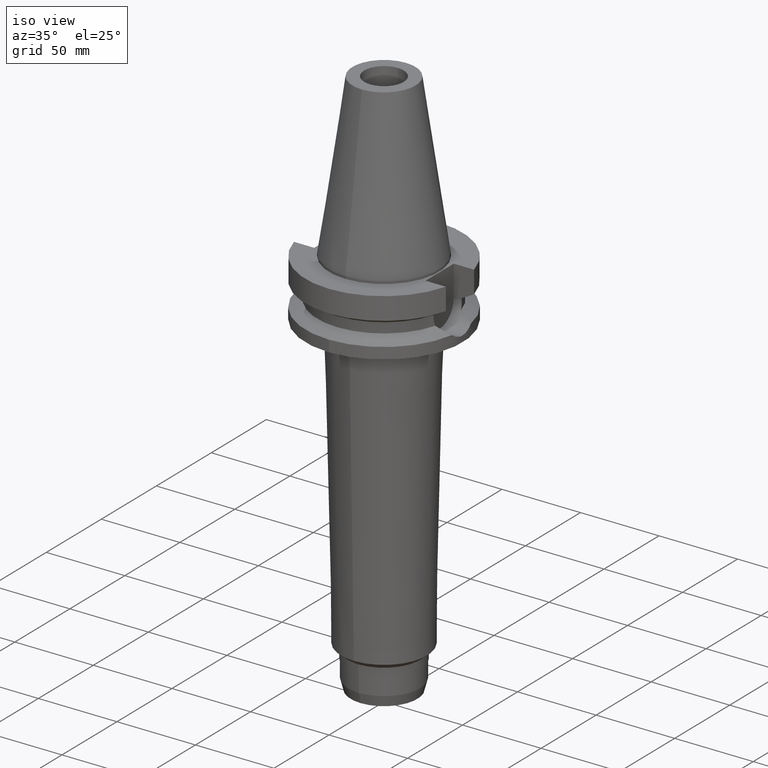
[diagram: clean part render]
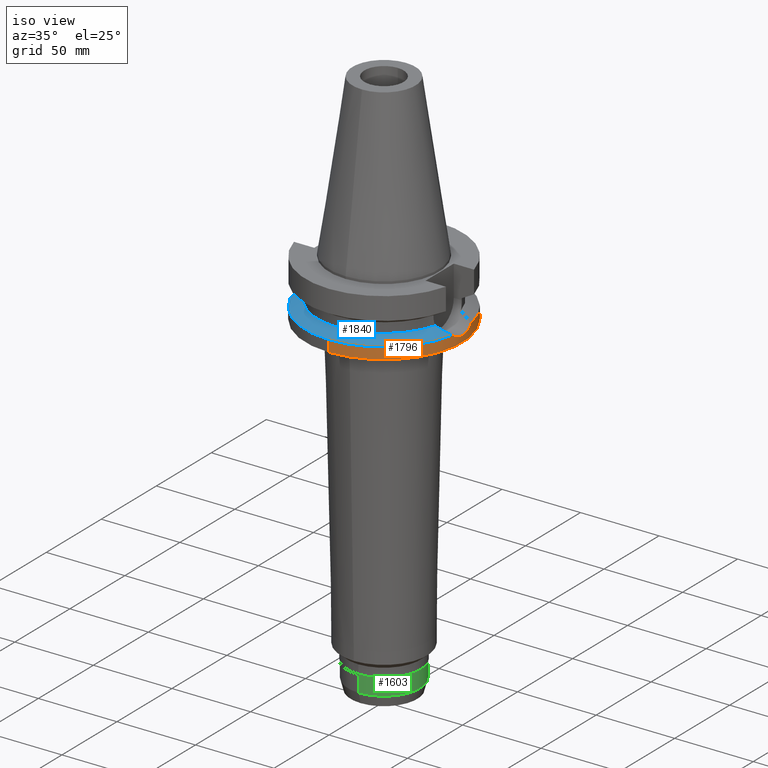
[diagram: same view with three faces highlighted in distinct colors, each labeled with its STEP entity id]
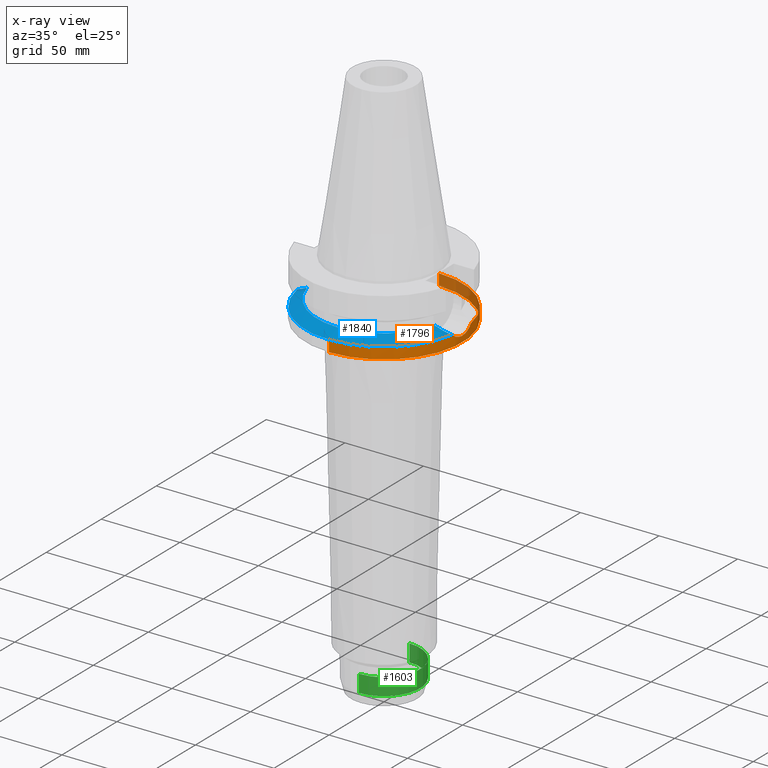
[diagram: x-ray of the same camera — body ghosted, the three highlighted faces saturated]
A machine part, iso view with three faces highlighted in distinct colors.
The next image is the same camera in x-ray (body ghosted, the three faces saturated) — at least one of them is partly hidden behind the body in this view.
Their STEP definitions:

[orange] entity #1796 — the highlighted cylindrical surface (partial cylindrical patch) has radius 50 mm, axis along (0, 0, -1).
#488=CARTESIAN_POINT('',(0.E0,2.688222188808E-14,-3.8E1));
#489=DIRECTION('',(0.E0,0.E0,1.E0));
#490=DIRECTION('',(0.E0,-1.E0,0.E0));
#491=AXIS2_PLACEMENT_3D('',#488,#489,#490);
#520=CARTESIAN_POINT('',(4.926250064874E1,-8.556052234130E0,-3.073730776427E1));
#521=CARTESIAN_POINT('',(4.940163688830E1,-7.754958586736E0,-3.145223204333E1));
#522=CARTESIAN_POINT('',(4.966038067048E1,-6.040424970940E0,-3.263510918962E1));
#523=CARTESIAN_POINT('',(4.993559859786E1,-3.083334717630E0,-3.375320105744E1));
#524=CARTESIAN_POINT('',(5.000000016410E1,-1.047716999210E0,-3.400000074622E1));
#525=CARTESIAN_POINT('',(5.000000016410E1,1.803353644084E-14,
-3.400000074622E1));
#530=CARTESIAN_POINT('',(5.000000016410E1,1.803353644084E-14,
-3.400000074622E1));
#531=CARTESIAN_POINT('',(5.000000016410E1,1.047853075079E0,-3.400000074622E1));
#532=CARTESIAN_POINT('',(4.993558133249E1,3.083649438432E0,-3.375313491797E1));
#533=CARTESIAN_POINT('',(4.966034394328E1,6.040700032429E0,-3.263495205735E1));
#534=CARTESIAN_POINT('',(4.940161955145E1,7.755058405725E0,-3.145214296134E1));
#535=CARTESIAN_POINT('',(4.926250064874E1,8.556052234130E0,-3.073730776427E1));
#540=DIRECTION('',(0.E0,2.152361642122E-14,-1.E0));
#541=VECTOR('',#540,7.262692235730E0);
#542=CARTESIAN_POINT('',(0.E0,5.E1,-3.073730776427E1));
#543=LINE('',#542,#541);
#597=CARTESIAN_POINT('',(0.E0,0.E0,-3.073730776427E1));
#598=DIRECTION('',(0.E0,0.E0,-1.E0));
#599=DIRECTION('',(9.852500129747E-1,-1.711210446826E-1,0.E0));
#600=AXIS2_PLACEMENT_3D('',#597,#598,#599);
#640=DIRECTION('',(0.E0,-2.250196262218E-14,-1.E0));
#641=VECTOR('',#640,7.262692235730E0);
#642=CARTESIAN_POINT('',(0.E0,-5.E1,-3.073730776427E1));
#643=LINE('',#642,#641);
#665=CARTESIAN_POINT('',(0.E0,0.E0,-3.073730776427E1));
#666=DIRECTION('',(0.E0,0.E0,-1.E0));
#667=DIRECTION('',(0.E0,1.E0,0.E0));
#668=AXIS2_PLACEMENT_3D('',#665,#666,#667);
#1205=CARTESIAN_POINT('',(0.E0,-5.E1,-3.8E1));
#1206=CARTESIAN_POINT('',(0.E0,5.E1,-3.8E1));
#1207=VERTEX_POINT('',#1205);
#1208=VERTEX_POINT('',#1206);
#1209=VERTEX_POINT('',#530);
#1210=VERTEX_POINT('',#535);
#1211=VERTEX_POINT('',#520);
#1212=CARTESIAN_POINT('',(0.E0,5.E1,-3.073730776427E1));
#1213=VERTEX_POINT('',#1212);
#1214=CARTESIAN_POINT('',(0.E0,-5.E1,-3.073730776427E1));
#1215=VERTEX_POINT('',#1214);
#1776=CARTESIAN_POINT('',(0.E0,2.688222188808E-14,1.1951E2));
#1777=DIRECTION('',(0.E0,0.E0,-1.E0));
#1778=DIRECTION('',(0.E0,-1.E0,0.E0));
#1779=AXIS2_PLACEMENT_3D('',#1776,#1777,#1778);
#1780=CYLINDRICAL_SURFACE('',#1779,5.E1);
#1782=ORIENTED_EDGE('',*,*,#1781,.T.);
#1784=ORIENTED_EDGE('',*,*,#1783,.T.);
#1786=ORIENTED_EDGE('',*,*,#1785,.F.);
#1788=ORIENTED_EDGE('',*,*,#1787,.T.);
#1789=ORIENTED_EDGE('',*,*,#1765,.F.);
#1791=ORIENTED_EDGE('',*,*,#1790,.F.);
#1793=ORIENTED_EDGE('',*,*,#1792,.F.);
#1794=EDGE_LOOP('',(#1782,#1784,#1786,#1788,#1789,#1791,#1793));
#1795=FACE_OUTER_BOUND('',#1794,.F.);
#492=CIRCLE('',#491,5.E1);
#526=B_SPLINE_CURVE_WITH_KNOTS('',3,(#520,#521,#522,#523,#524,#525),
.UNSPECIFIED.,.F.,.F.,(4,1,1,4),(0.E0,3.333333333333E-1,6.666666666667E-1,1.E0),
.UNSPECIFIED.);
#536=B_SPLINE_CURVE_WITH_KNOTS('',3,(#530,#531,#532,#533,#534,#535),
.UNSPECIFIED.,.F.,.F.,(4,1,1,4),(0.E0,3.333333333333E-1,6.666666666667E-1,1.E0),
.UNSPECIFIED.);
#601=CIRCLE('',#600,5.E1);
#669=CIRCLE('',#668,5.E1);
#1765=EDGE_CURVE('',#1207,#1208,#492,.T.);
#1781=EDGE_CURVE('',#1211,#1209,#526,.T.);
#1783=EDGE_CURVE('',#1209,#1210,#536,.T.);
#1785=EDGE_CURVE('',#1213,#1210,#669,.T.);
#1787=EDGE_CURVE('',#1213,#1208,#543,.T.);
#1790=EDGE_CURVE('',#1215,#1207,#643,.T.);
#1792=EDGE_CURVE('',#1211,#1215,#601,.T.);
#1796=ADVANCED_FACE('',(#1795),#1780,.T.);

[blue] entity #1840 — the highlighted conical surface has half-angle 60 deg.
#520=CARTESIAN_POINT('',(4.926250064874E1,-8.556052234130E0,-3.073730776427E1));
#561=CARTESIAN_POINT('',(-4.926250064874E1,-8.556052234130E0,
-3.073730776427E1));
#562=CARTESIAN_POINT('',(-4.850516715124E1,-8.990660140457E0,
-3.034944831099E1));
#563=CARTESIAN_POINT('',(-4.686825604705E1,-9.811258881911E0,
-2.951024882167E1));
#564=CARTESIAN_POINT('',(-4.409105561535E1,-1.087032054238E1,
-2.808218430025E1));
#565=CARTESIAN_POINT('',(-4.197104311257E1,-1.146516460610E1,
-2.698755488822E1));
#566=CARTESIAN_POINT('',(-4.085052569294E1,-1.172538061688E1,
-2.640718074535E1));
#571=CARTESIAN_POINT('',(0.E0,0.E0,-2.640718074535E1));
#572=DIRECTION('',(0.E0,0.E0,1.E0));
#573=DIRECTION('',(-9.611888398338E-1,-2.758913086325E-1,0.E0));
#574=AXIS2_PLACEMENT_3D('',#571,#572,#573);
#579=CARTESIAN_POINT('',(0.E0,0.E0,-2.640718074535E1));
#580=DIRECTION('',(0.E0,0.E0,1.E0));
#581=DIRECTION('',(0.E0,-1.E0,0.E0));
#582=AXIS2_PLACEMENT_3D('',#579,#580,#581);
#587=CARTESIAN_POINT('',(4.085052569294E1,-1.172538061688E1,-2.640718074535E1));
#588=CARTESIAN_POINT('',(4.199242978068E1,-1.146019801356E1,-2.699863215391E1));
#589=CARTESIAN_POINT('',(4.414030951563E1,-1.085501308367E1,-2.810757365825E1));
#590=CARTESIAN_POINT('',(4.691884757540E1,-9.788493802271E0,-2.953621028612E1));
#591=CARTESIAN_POINT('',(4.852593326370E1,-8.978743175622E0,-3.036008343151E1));
#592=CARTESIAN_POINT('',(4.926250064874E1,-8.556052234130E0,-3.073730776427E1));
#597=CARTESIAN_POINT('',(0.E0,0.E0,-3.073730776427E1));
#598=DIRECTION('',(0.E0,0.E0,-1.E0));
#599=DIRECTION('',(9.852500129747E-1,-1.711210446826E-1,0.E0));
#600=AXIS2_PLACEMENT_3D('',#597,#598,#599);
#605=CARTESIAN_POINT('',(0.E0,0.E0,-3.073730776427E1));
#606=DIRECTION('',(0.E0,0.E0,-1.E0));
#607=DIRECTION('',(0.E0,-1.E0,0.E0));
#608=AXIS2_PLACEMENT_3D('',#605,#606,#607);
#1211=VERTEX_POINT('',#520);
#1214=CARTESIAN_POINT('',(0.E0,-5.E1,-3.073730776427E1));
#1215=VERTEX_POINT('',#1214);
#1216=VERTEX_POINT('',#587);
#1227=VERTEX_POINT('',#561);
#1228=VERTEX_POINT('',#566);
#1229=CARTESIAN_POINT('',(0.E0,-4.25E1,-2.640718074535E1));
#1230=VERTEX_POINT('',#1229);
#1823=CARTESIAN_POINT('',(0.E0,0.E0,-2.857224425481E1));
#1824=DIRECTION('',(0.E0,0.E0,-1.E0));
#1825=DIRECTION('',(0.E0,-1.E0,0.E0));
#1826=AXIS2_PLACEMENT_3D('',#1823,#1824,#1825);
#1827=CONICAL_SURFACE('',#1826,4.625E1,6.E1);
#1829=ORIENTED_EDGE('',*,*,#1828,.T.);
#1831=ORIENTED_EDGE('',*,*,#1830,.T.);
#1833=ORIENTED_EDGE('',*,*,#1832,.T.);
#1834=ORIENTED_EDGE('',*,*,#1804,.T.);
#1835=ORIENTED_EDGE('',*,*,#1792,.T.);
#1837=ORIENTED_EDGE('',*,*,#1836,.T.);
#1838=EDGE_LOOP('',(#1829,#1831,#1833,#1834,#1835,#1837));
#1839=FACE_OUTER_BOUND('',#1838,.F.);
#567=B_SPLINE_CURVE_WITH_KNOTS('',3,(#561,#562,#563,#564,#565,#566),
.UNSPECIFIED.,.F.,.F.,(4,1,1,4),(0.E0,3.333333333333E-1,6.666666666667E-1,1.E0),
.UNSPECIFIED.);
#575=CIRCLE('',#574,4.25E1);
#583=CIRCLE('',#582,4.25E1);
#593=B_SPLINE_CURVE_WITH_KNOTS('',3,(#587,#588,#589,#590,#591,#592),
.UNSPECIFIED.,.F.,.F.,(4,1,1,4),(0.E0,3.333333333333E-1,6.666666666667E-1,1.E0),
.UNSPECIFIED.);
#601=CIRCLE('',#600,5.E1);
#609=CIRCLE('',#608,5.E1);
#1792=EDGE_CURVE('',#1211,#1215,#601,.T.);
#1804=EDGE_CURVE('',#1216,#1211,#593,.T.);
#1828=EDGE_CURVE('',#1227,#1228,#567,.T.);
#1830=EDGE_CURVE('',#1228,#1230,#575,.T.);
#1832=EDGE_CURVE('',#1230,#1216,#583,.T.);
#1836=EDGE_CURVE('',#1215,#1227,#609,.T.);
#1840=ADVANCED_FACE('',(#1839),#1827,.T.);

[green] entity #1603 — the highlighted cylindrical surface (partial cylindrical patch) has radius 23 mm, axis along (0, 0, -1).
#285=CARTESIAN_POINT('',(0.E0,-1.806354028742E-14,-2.442E2));
#286=DIRECTION('',(0.E0,0.E0,1.E0));
#287=DIRECTION('',(0.E0,-1.E0,0.E0));
#288=AXIS2_PLACEMENT_3D('',#285,#286,#287);
#308=DIRECTION('',(0.E0,-1.160335843718E-13,-1.E0));
#309=VECTOR('',#308,1.09E1);
#310=CARTESIAN_POINT('',(0.E0,-2.3E1,-2.333E2));
#311=LINE('',#310,#309);
#315=DIRECTION('',(0.E0,1.147298362328E-13,-1.E0));
#316=VECTOR('',#315,1.09E1);
#317=CARTESIAN_POINT('',(0.E0,2.3E1,-2.333E2));
#318=LINE('',#317,#316);
#346=CARTESIAN_POINT('',(0.E0,2.688222188808E-14,-2.333E2));
#347=DIRECTION('',(0.E0,0.E0,-1.E0));
#348=DIRECTION('',(0.E0,1.E0,0.E0));
#349=AXIS2_PLACEMENT_3D('',#346,#347,#348);
#1173=CARTESIAN_POINT('',(0.E0,2.3E1,-2.442E2));
#1174=VERTEX_POINT('',#1173);
#1175=CARTESIAN_POINT('',(0.E0,-2.3E1,-2.442E2));
#1176=VERTEX_POINT('',#1175);
#1177=CARTESIAN_POINT('',(0.E0,2.3E1,-2.333E2));
#1178=VERTEX_POINT('',#1177);
#1179=CARTESIAN_POINT('',(0.E0,-2.3E1,-2.333E2));
#1180=VERTEX_POINT('',#1179);
#1591=CARTESIAN_POINT('',(0.E0,2.688222188808E-14,1.1951E2));
#1592=DIRECTION('',(0.E0,0.E0,-1.E0));
#1593=DIRECTION('',(0.E0,-1.E0,0.E0));
#1594=AXIS2_PLACEMENT_3D('',#1591,#1592,#1593);
#1595=CYLINDRICAL_SURFACE('',#1594,2.3E1);
#1596=ORIENTED_EDGE('',*,*,#1581,.T.);
#1597=ORIENTED_EDGE('',*,*,#1558,.F.);
#1598=ORIENTED_EDGE('',*,*,#1585,.F.);
#1600=ORIENTED_EDGE('',*,*,#1599,.F.);
#1601=EDGE_LOOP('',(#1596,#1597,#1598,#1600));
#1602=FACE_OUTER_BOUND('',#1601,.F.);
#289=CIRCLE('',#288,2.3E1);
#350=CIRCLE('',#349,2.3E1);
#1558=EDGE_CURVE('',#1176,#1174,#289,.T.);
#1581=EDGE_CURVE('',#1178,#1174,#318,.T.);
#1585=EDGE_CURVE('',#1180,#1176,#311,.T.);
#1599=EDGE_CURVE('',#1178,#1180,#350,.T.);
#1603=ADVANCED_FACE('',(#1602),#1595,.T.);